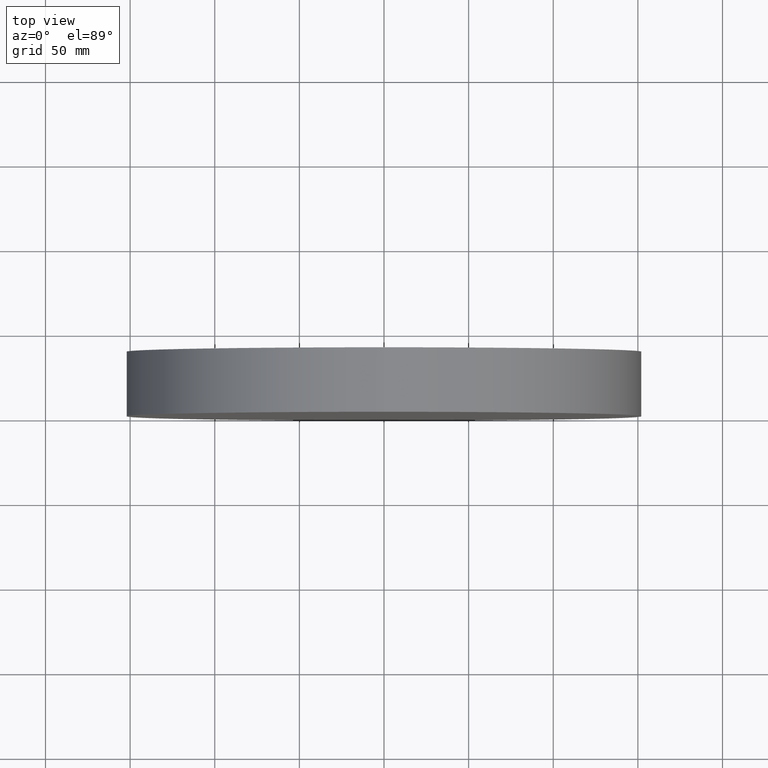
[diagram: clean part render]
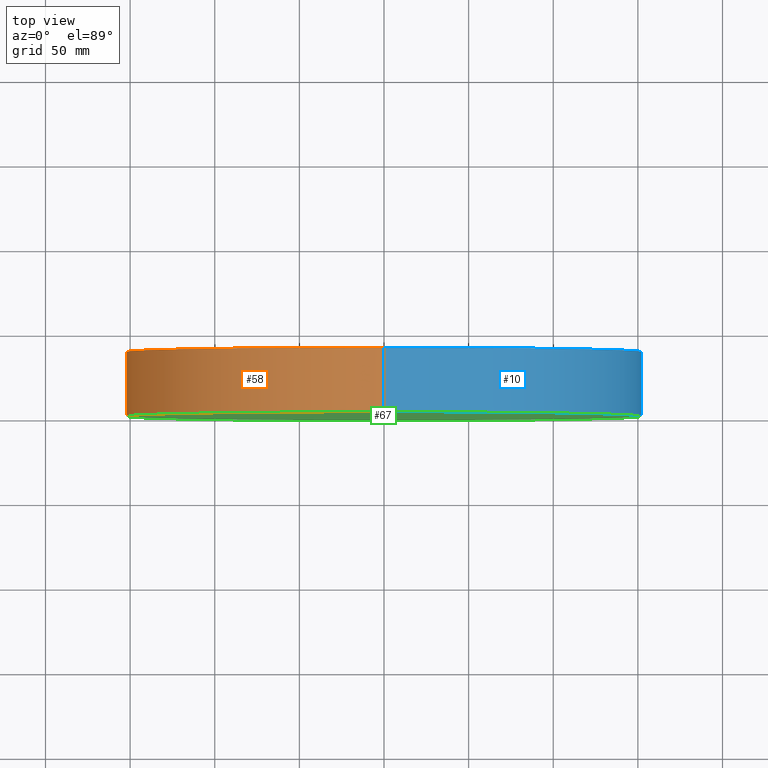
[diagram: same view with three faces highlighted in distinct colors, each labeled with its STEP entity id]
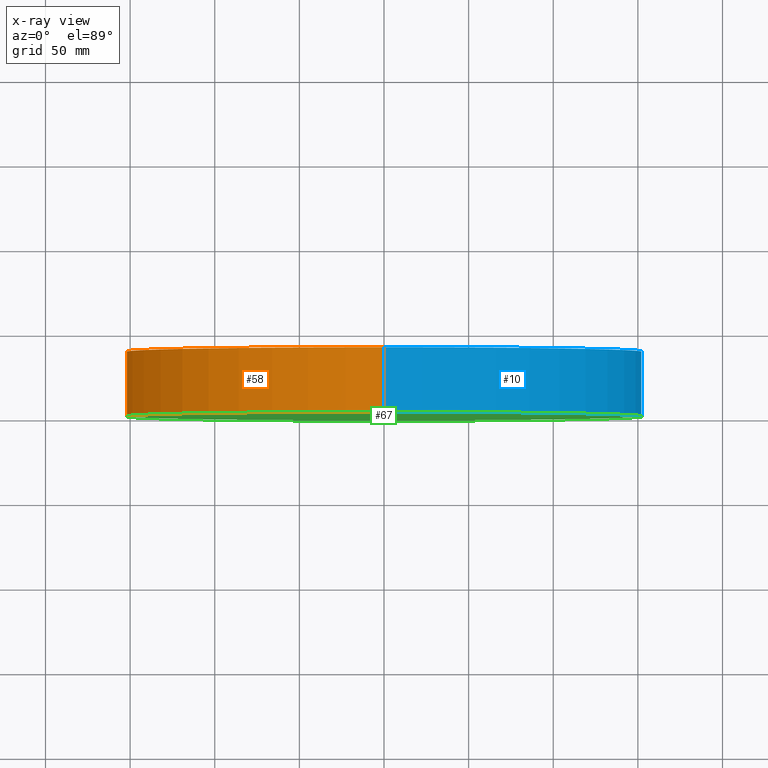
[diagram: x-ray of the same camera — body ghosted, the three highlighted faces saturated]
A machine part, top view with three faces highlighted in distinct colors.
The next image is the same camera in x-ray (body ghosted, the three faces saturated) — at least one of them is partly hidden behind the body in this view.
Their STEP definitions:

[orange] entity #58 — the highlighted cylindrical surface (partial cylindrical patch) has radius 152.4 mm, axis along (-0, -1, -0).
#1 = EDGE_CURVE ( 'NONE', #120, #16, #84, .T. ) ;
#4 = VERTEX_POINT ( 'NONE', #14 ) ;
#5 = DIRECTION ( 'NONE',  ( 0.0000000000000000000, 0.0000000000000000000, -1.000000000000000000 ) ) ;
#7 = CARTESIAN_POINT ( 'NONE',  ( 0.0000000000000000000, 38.10000000000000100, -152.4000000000000100 ) ) ;
#14 = CARTESIAN_POINT ( 'NONE',  ( 0.0000000000000000000, 0.0000000000000000000, -152.4000000000000100 ) ) ;
#16 = VERTEX_POINT ( 'NONE', #105 ) ;
#22 = LINE ( 'NONE', #138, #93 ) ;
#28 = CARTESIAN_POINT ( 'NONE',  ( 1.866361721900565800E-014, 0.0000000000000000000, 152.4000000000000100 ) ) ;
#29 = DIRECTION ( 'NONE',  ( -0.0000000000000000000, -1.000000000000000000, -0.0000000000000000000 ) ) ;
#31 = VECTOR ( 'NONE', #137, 1000.000000000000000 ) ;
#34 = VERTEX_POINT ( 'NONE', #28 ) ;
#41 = EDGE_CURVE ( 'NONE', #4, #34, #134, .T. ) ;
#51 = DIRECTION ( 'NONE',  ( 0.0000000000000000000, 1.000000000000000000, 0.0000000000000000000 ) ) ;
#58 = ADVANCED_FACE ( 'NONE', ( #110 ), #132, .T. ) ;
#60 = EDGE_CURVE ( 'NONE', #120, #4, #95, .T. ) ;
#61 = EDGE_LOOP ( 'NONE', ( #118, #140, #68, #97 ) ) ;
#68 = ORIENTED_EDGE ( 'NONE', *, *, #60, .T. ) ;
#70 = DIRECTION ( 'NONE',  ( -0.0000000000000000000, -1.000000000000000000, -0.0000000000000000000 ) ) ;
#71 = AXIS2_PLACEMENT_3D ( 'NONE', #128, #86, #121 ) ;
#75 = CARTESIAN_POINT ( 'NONE',  ( 0.0000000000000000000, 38.10000000000000100, 0.0000000000000000000 ) ) ;
#77 = CARTESIAN_POINT ( 'NONE',  ( 0.0000000000000000000, 38.10000000000000100, 0.0000000000000000000 ) ) ;
#84 = CIRCLE ( 'NONE', #99, 152.4000000000000100 ) ;
#86 = DIRECTION ( 'NONE',  ( 0.0000000000000000000, 1.000000000000000000, 0.0000000000000000000 ) ) ;
#89 = EDGE_CURVE ( 'NONE', #16, #34, #22, .T. ) ;
#90 = CARTESIAN_POINT ( 'NONE',  ( 0.0000000000000000000, 38.10000000000000100, -152.4000000000000100 ) ) ;
#93 = VECTOR ( 'NONE', #70, 1000.000000000000000 ) ;
#95 = LINE ( 'NONE', #90, #31 ) ;
#97 = ORIENTED_EDGE ( 'NONE', *, *, #41, .T. ) ;
#99 = AXIS2_PLACEMENT_3D ( 'NONE', #77, #51, #124 ) ;
#105 = CARTESIAN_POINT ( 'NONE',  ( 1.866361721900565800E-014, 38.10000000000000100, 152.4000000000000100 ) ) ;
#110 = FACE_OUTER_BOUND ( 'NONE', #61, .T. ) ;
#118 = ORIENTED_EDGE ( 'NONE', *, *, #89, .F. ) ;
#119 = AXIS2_PLACEMENT_3D ( 'NONE', #75, #29, #5 ) ;
#120 = VERTEX_POINT ( 'NONE', #7 ) ;
#121 = DIRECTION ( 'NONE',  ( 0.0000000000000000000, 0.0000000000000000000, 1.000000000000000000 ) ) ;
#124 = DIRECTION ( 'NONE',  ( 0.0000000000000000000, 0.0000000000000000000, 1.000000000000000000 ) ) ;
#128 = CARTESIAN_POINT ( 'NONE',  ( 0.0000000000000000000, 0.0000000000000000000, 0.0000000000000000000 ) ) ;
#132 = CYLINDRICAL_SURFACE ( 'NONE', #119, 152.4000000000000100 ) ;
#134 = CIRCLE ( 'NONE', #71, 152.4000000000000100 ) ;
#137 = DIRECTION ( 'NONE',  ( -0.0000000000000000000, -1.000000000000000000, -0.0000000000000000000 ) ) ;
#138 = CARTESIAN_POINT ( 'NONE',  ( 1.866361721900565800E-014, 38.10000000000000100, 152.4000000000000100 ) ) ;
#140 = ORIENTED_EDGE ( 'NONE', *, *, #1, .F. ) ;

[blue] entity #10 — the highlighted cylindrical surface (partial cylindrical patch) has radius 152.4 mm, axis along (-0, -1, -0).
#4 = VERTEX_POINT ( 'NONE', #14 ) ;
#7 = CARTESIAN_POINT ( 'NONE',  ( 0.0000000000000000000, 38.10000000000000100, -152.4000000000000100 ) ) ;
#10 = ADVANCED_FACE ( 'NONE', ( #53 ), #106, .T. ) ;
#14 = CARTESIAN_POINT ( 'NONE',  ( 0.0000000000000000000, 0.0000000000000000000, -152.4000000000000100 ) ) ;
#16 = VERTEX_POINT ( 'NONE', #105 ) ;
#22 = LINE ( 'NONE', #138, #93 ) ;
#25 = EDGE_LOOP ( 'NONE', ( #79, #122, #131, #30 ) ) ;
#28 = CARTESIAN_POINT ( 'NONE',  ( 1.866361721900565800E-014, 0.0000000000000000000, 152.4000000000000100 ) ) ;
#30 = ORIENTED_EDGE ( 'NONE', *, *, #60, .F. ) ;
#31 = VECTOR ( 'NONE', #137, 1000.000000000000000 ) ;
#33 = AXIS2_PLACEMENT_3D ( 'NONE', #94, #65, #85 ) ;
#34 = VERTEX_POINT ( 'NONE', #28 ) ;
#43 = DIRECTION ( 'NONE',  ( 0.0000000000000000000, 1.000000000000000000, 0.0000000000000000000 ) ) ;
#47 = EDGE_CURVE ( 'NONE', #16, #120, #115, .T. ) ;
#53 = FACE_OUTER_BOUND ( 'NONE', #25, .T. ) ;
#54 = AXIS2_PLACEMENT_3D ( 'NONE', #101, #43, #102 ) ;
#57 = AXIS2_PLACEMENT_3D ( 'NONE', #114, #72, #78 ) ;
#60 = EDGE_CURVE ( 'NONE', #120, #4, #95, .T. ) ;
#65 = DIRECTION ( 'NONE',  ( 0.0000000000000000000, 1.000000000000000000, 0.0000000000000000000 ) ) ;
#70 = DIRECTION ( 'NONE',  ( -0.0000000000000000000, -1.000000000000000000, -0.0000000000000000000 ) ) ;
#72 = DIRECTION ( 'NONE',  ( -0.0000000000000000000, -1.000000000000000000, -0.0000000000000000000 ) ) ;
#78 = DIRECTION ( 'NONE',  ( 0.0000000000000000000, 0.0000000000000000000, -1.000000000000000000 ) ) ;
#79 = ORIENTED_EDGE ( 'NONE', *, *, #47, .F. ) ;
#82 = EDGE_CURVE ( 'NONE', #34, #4, #107, .T. ) ;
#85 = DIRECTION ( 'NONE',  ( 0.0000000000000000000, 0.0000000000000000000, 1.000000000000000000 ) ) ;
#89 = EDGE_CURVE ( 'NONE', #16, #34, #22, .T. ) ;
#90 = CARTESIAN_POINT ( 'NONE',  ( 0.0000000000000000000, 38.10000000000000100, -152.4000000000000100 ) ) ;
#93 = VECTOR ( 'NONE', #70, 1000.000000000000000 ) ;
#94 = CARTESIAN_POINT ( 'NONE',  ( 0.0000000000000000000, 0.0000000000000000000, 0.0000000000000000000 ) ) ;
#95 = LINE ( 'NONE', #90, #31 ) ;
#101 = CARTESIAN_POINT ( 'NONE',  ( 0.0000000000000000000, 38.10000000000000100, 0.0000000000000000000 ) ) ;
#102 = DIRECTION ( 'NONE',  ( 0.0000000000000000000, 0.0000000000000000000, 1.000000000000000000 ) ) ;
#105 = CARTESIAN_POINT ( 'NONE',  ( 1.866361721900565800E-014, 38.10000000000000100, 152.4000000000000100 ) ) ;
#106 = CYLINDRICAL_SURFACE ( 'NONE', #57, 152.4000000000000100 ) ;
#107 = CIRCLE ( 'NONE', #33, 152.4000000000000100 ) ;
#114 = CARTESIAN_POINT ( 'NONE',  ( 0.0000000000000000000, 38.10000000000000100, 0.0000000000000000000 ) ) ;
#115 = CIRCLE ( 'NONE', #54, 152.4000000000000100 ) ;
#120 = VERTEX_POINT ( 'NONE', #7 ) ;
#122 = ORIENTED_EDGE ( 'NONE', *, *, #89, .T. ) ;
#131 = ORIENTED_EDGE ( 'NONE', *, *, #82, .T. ) ;
#137 = DIRECTION ( 'NONE',  ( -0.0000000000000000000, -1.000000000000000000, -0.0000000000000000000 ) ) ;
#138 = CARTESIAN_POINT ( 'NONE',  ( 1.866361721900565800E-014, 38.10000000000000100, 152.4000000000000100 ) ) ;

[green] entity #67 — the highlighted planar face has unit normal (0, 1, 0).
#4 = VERTEX_POINT ( 'NONE', #14 ) ;
#9 = ORIENTED_EDGE ( 'NONE', *, *, #82, .F. ) ;
#14 = CARTESIAN_POINT ( 'NONE',  ( 0.0000000000000000000, 0.0000000000000000000, -152.4000000000000100 ) ) ;
#28 = CARTESIAN_POINT ( 'NONE',  ( 1.866361721900565800E-014, 0.0000000000000000000, 152.4000000000000100 ) ) ;
#33 = AXIS2_PLACEMENT_3D ( 'NONE', #94, #65, #85 ) ;
#34 = VERTEX_POINT ( 'NONE', #28 ) ;
#41 = EDGE_CURVE ( 'NONE', #4, #34, #134, .T. ) ;
#44 = AXIS2_PLACEMENT_3D ( 'NONE', #104, #136, #133 ) ;
#62 = EDGE_LOOP ( 'NONE', ( #88, #9 ) ) ;
#65 = DIRECTION ( 'NONE',  ( 0.0000000000000000000, 1.000000000000000000, 0.0000000000000000000 ) ) ;
#66 = FACE_OUTER_BOUND ( 'NONE', #62, .T. ) ;
#67 = ADVANCED_FACE ( 'NONE', ( #66 ), #127, .F. ) ;
#71 = AXIS2_PLACEMENT_3D ( 'NONE', #128, #86, #121 ) ;
#82 = EDGE_CURVE ( 'NONE', #34, #4, #107, .T. ) ;
#85 = DIRECTION ( 'NONE',  ( 0.0000000000000000000, 0.0000000000000000000, 1.000000000000000000 ) ) ;
#86 = DIRECTION ( 'NONE',  ( 0.0000000000000000000, 1.000000000000000000, 0.0000000000000000000 ) ) ;
#88 = ORIENTED_EDGE ( 'NONE', *, *, #41, .F. ) ;
#94 = CARTESIAN_POINT ( 'NONE',  ( 0.0000000000000000000, 0.0000000000000000000, 0.0000000000000000000 ) ) ;
#104 = CARTESIAN_POINT ( 'NONE',  ( 0.0000000000000000000, 0.0000000000000000000, 0.0000000000000000000 ) ) ;
#107 = CIRCLE ( 'NONE', #33, 152.4000000000000100 ) ;
#121 = DIRECTION ( 'NONE',  ( 0.0000000000000000000, 0.0000000000000000000, 1.000000000000000000 ) ) ;
#127 = PLANE ( 'NONE',  #44 ) ;
#128 = CARTESIAN_POINT ( 'NONE',  ( 0.0000000000000000000, 0.0000000000000000000, 0.0000000000000000000 ) ) ;
#133 = DIRECTION ( 'NONE',  ( 0.0000000000000000000, -0.0000000000000000000, 1.000000000000000000 ) ) ;
#134 = CIRCLE ( 'NONE', #71, 152.4000000000000100 ) ;
#136 = DIRECTION ( 'NONE',  ( 0.0000000000000000000, 1.000000000000000000, 0.0000000000000000000 ) ) ;